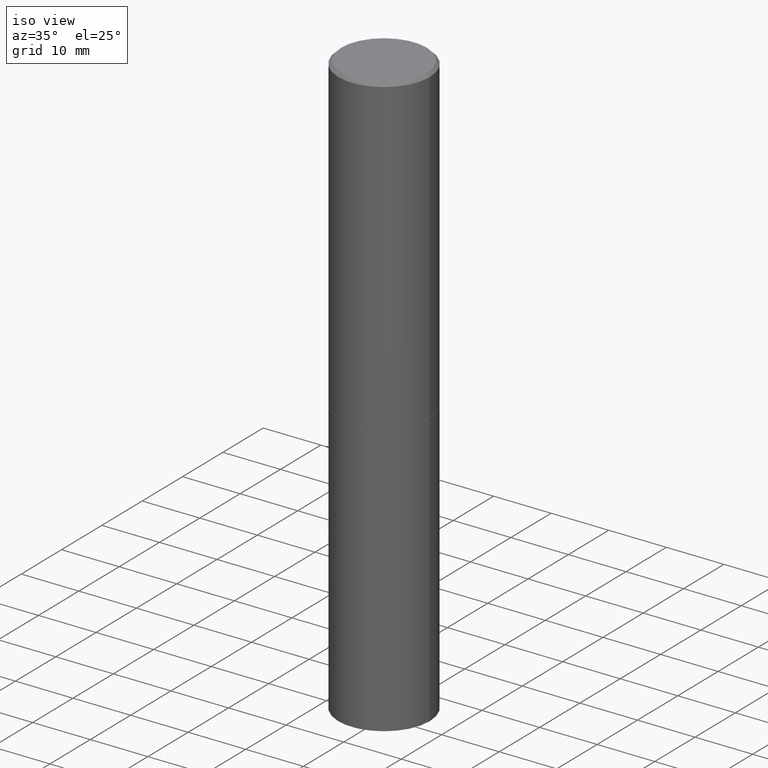
[diagram: clean part render]
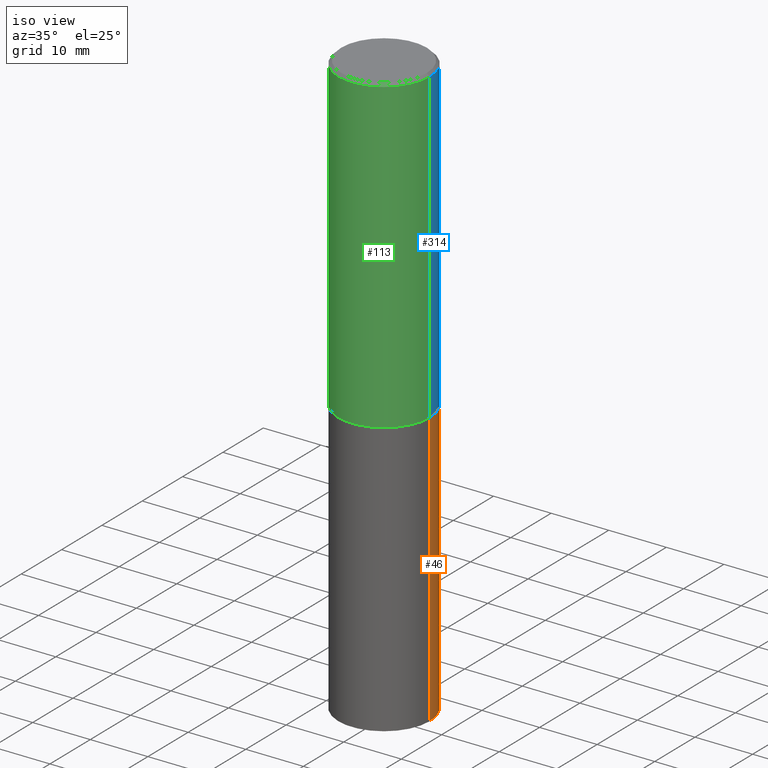
[diagram: same view with three faces highlighted in distinct colors, each labeled with its STEP entity id]
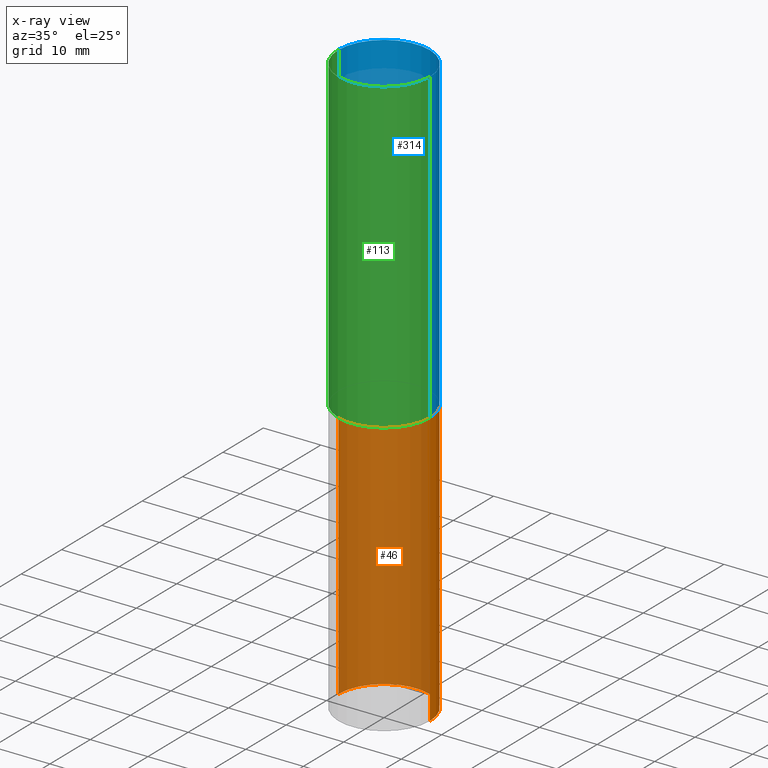
[diagram: x-ray of the same camera — body ghosted, the three highlighted faces saturated]
A machine part, iso view with three faces highlighted in distinct colors.
The next image is the same camera in x-ray (body ghosted, the three faces saturated) — at least one of them is partly hidden behind the body in this view.
Their STEP definitions:

[orange] entity #46 — the highlighted cylindrical surface (partial cylindrical patch) has radius 7.9375 mm, axis along (-0, 0, 1).
#16 = DIRECTION ( 'NONE',  ( -2.445468806185136877E-29, 3.491481338843145188E-15, 1.000000000000000000 ) ) ;
#29 = VERTEX_POINT ( 'NONE', #106 ) ;
#32 = DIRECTION ( 'NONE',  ( -2.445468806185136597E-29, 3.491481338843145583E-15, 1.000000000000000000 ) ) ;
#36 = ORIENTED_EDGE ( 'NONE', *, *, #109, .T. ) ;
#45 = CARTESIAN_POINT ( 'NONE',  ( 0.000000000000000000, 0.000000000000000000, 0.000000000000000000 ) ) ;
#46 = ADVANCED_FACE ( 'NONE', ( #328 ), #130, .T. ) ;
#60 = ORIENTED_EDGE ( 'NONE', *, *, #61, .T. ) ;
#61 = EDGE_CURVE ( 'NONE', #29, #227, #129, .T. ) ;
#67 = VERTEX_POINT ( 'NONE', #238 ) ;
#72 = CARTESIAN_POINT ( 'NONE',  ( 0.3125000000000000000, -2.182175836776958347E-15, 1.523805242436230075E-29 ) ) ;
#87 = DIRECTION ( 'NONE',  ( 1.000000000000000000, -6.982962677686265133E-15, 0.000000000000000000 ) ) ;
#106 = CARTESIAN_POINT ( 'NONE',  ( 0.3125000000000000000, -1.614810119214954068E-14, -4.000000000000000000 ) ) ;
#109 = EDGE_CURVE ( 'NONE', #227, #67, #282, .T. ) ;
#117 = VERTEX_POINT ( 'NONE', #272 ) ;
#126 = EDGE_CURVE ( 'NONE', #29, #117, #241, .T. ) ;
#129 = CIRCLE ( 'NONE', #343, 0.3125000000000000000 ) ;
#130 = CYLINDRICAL_SURFACE ( 'NONE', #134, 0.3125000000000000000 ) ;
#134 = AXIS2_PLACEMENT_3D ( 'NONE', #45, #304, #333 ) ;
#137 = DIRECTION ( 'NONE',  ( 1.000000000000000000, -6.982962677686269077E-15, 0.000000000000000000 ) ) ;
#163 = VECTOR ( 'NONE', #16, 39.37007874015748143 ) ;
#188 = CARTESIAN_POINT ( 'NONE',  ( 5.196621213143414147E-29, -7.419397845041682046E-15, -2.124999999999999556 ) ) ;
#191 = DIRECTION ( 'NONE',  ( -2.445468806185136597E-29, 3.491481338843145583E-15, 1.000000000000000000 ) ) ;
#192 = EDGE_CURVE ( 'NONE', #117, #67, #339, .T. ) ;
#201 = AXIS2_PLACEMENT_3D ( 'NONE', #188, #32, #87 ) ;
#217 = CARTESIAN_POINT ( 'NONE',  ( -0.3125000000000000000, 2.220446049250313081E-15, -1.537167215704658232E-29 ) ) ;
#227 = VERTEX_POINT ( 'NONE', #297 ) ;
#238 = CARTESIAN_POINT ( 'NONE',  ( -0.3125000000000000000, -8.472215550956819896E-15, -2.124999999999999556 ) ) ;
#241 = LINE ( 'NONE', #72, #163 ) ;
#244 = EDGE_LOOP ( 'NONE', ( #60, #36, #365, #353 ) ) ;
#246 = DIRECTION ( 'NONE',  ( -2.445468806185136877E-29, 3.491481338843145188E-15, 1.000000000000000000 ) ) ;
#272 = CARTESIAN_POINT ( 'NONE',  ( 0.3125000000000000000, -9.601573681818640393E-15, -2.124999999999999556 ) ) ;
#282 = LINE ( 'NONE', #217, #308 ) ;
#297 = CARTESIAN_POINT ( 'NONE',  ( -0.3125000000000000000, -8.472215550956819896E-15, -4.000000000000000000 ) ) ;
#304 = DIRECTION ( 'NONE',  ( -2.445468806185136597E-29, 3.491481338843145583E-15, 1.000000000000000000 ) ) ;
#308 = VECTOR ( 'NONE', #246, 39.37007874015748143 ) ;
#328 = FACE_OUTER_BOUND ( 'NONE', #244, .T. ) ;
#333 = DIRECTION ( 'NONE',  ( 1.000000000000000000, -6.982962677686266711E-15, 4.876176775795936353E-29 ) ) ;
#339 = CIRCLE ( 'NONE', #201, 0.3125000000000000000 ) ;
#343 = AXIS2_PLACEMENT_3D ( 'NONE', #356, #191, #137 ) ;
#353 = ORIENTED_EDGE ( 'NONE', *, *, #126, .F. ) ;
#356 = CARTESIAN_POINT ( 'NONE',  ( 9.781875224740546387E-29, -1.396592535537258233E-14, -4.000000000000000000 ) ) ;
#365 = ORIENTED_EDGE ( 'NONE', *, *, #192, .F. ) ;

[blue] entity #314 — the highlighted cylindrical surface (partial cylindrical patch) has radius 7.9375 mm, axis along (-0, 0, 1).
#7 = CIRCLE ( 'NONE', #119, 0.3124999999999998335 ) ;
#14 = DIRECTION ( 'NONE',  ( -2.445468806185136877E-29, 3.491481338843145188E-15, 1.000000000000000000 ) ) ;
#20 = ORIENTED_EDGE ( 'NONE', *, *, #127, .T. ) ;
#23 = VECTOR ( 'NONE', #14, 39.37007874015748143 ) ;
#57 = AXIS2_PLACEMENT_3D ( 'NONE', #94, #65, #214 ) ;
#59 = CARTESIAN_POINT ( 'NONE',  ( -0.3124999999999998890, 2.220446049250312292E-15, -1.537167215704657391E-29 ) ) ;
#65 = DIRECTION ( 'NONE',  ( -2.445468806185136597E-29, 3.491481338843145583E-15, 1.000000000000000000 ) ) ;
#90 = LINE ( 'NONE', #273, #23 ) ;
#94 = CARTESIAN_POINT ( 'NONE',  ( 5.194175744337229665E-29, -7.415906363702840616E-15, -2.123999999999999666 ) ) ;
#105 = DIRECTION ( 'NONE',  ( -2.445468806185136597E-29, 3.491481338843145583E-15, 1.000000000000000000 ) ) ;
#119 = AXIS2_PLACEMENT_3D ( 'NONE', #271, #190, #133 ) ;
#127 = EDGE_CURVE ( 'NONE', #146, #200, #211, .T. ) ;
#133 = DIRECTION ( 'NONE',  ( 1.000000000000000000, -6.982962677686265133E-15, 0.000000000000000000 ) ) ;
#146 = VERTEX_POINT ( 'NONE', #335 ) ;
#168 = CARTESIAN_POINT ( 'NONE',  ( 0.3125000000000000000, -9.598082200479797386E-15, -2.123999999999999666 ) ) ;
#169 = EDGE_CURVE ( 'NONE', #312, #171, #90, .T. ) ;
#171 = VERTEX_POINT ( 'NONE', #180 ) ;
#180 = CARTESIAN_POINT ( 'NONE',  ( 0.3124999999999998335, -2.213735251080465334E-15, -0.02000000000000007674 ) ) ;
#190 = DIRECTION ( 'NONE',  ( -2.445468806185136597E-29, 3.491481338843145583E-15, 1.000000000000000000 ) ) ;
#196 = ORIENTED_EDGE ( 'NONE', *, *, #270, .F. ) ;
#198 = EDGE_LOOP ( 'NONE', ( #224, #20, #196, #223 ) ) ;
#200 = VERTEX_POINT ( 'NONE', #239 ) ;
#205 = EDGE_CURVE ( 'NONE', #312, #146, #324, .T. ) ;
#211 = LINE ( 'NONE', #59, #316 ) ;
#214 = DIRECTION ( 'NONE',  ( 1.000000000000000000, -6.982962677686265133E-15, 0.000000000000000000 ) ) ;
#222 = DIRECTION ( 'NONE',  ( 1.000000000000000000, -6.982962677686266711E-15, 4.876176775795935232E-29 ) ) ;
#223 = ORIENTED_EDGE ( 'NONE', *, *, #169, .F. ) ;
#224 = ORIENTED_EDGE ( 'NONE', *, *, #205, .T. ) ;
#237 = AXIS2_PLACEMENT_3D ( 'NONE', #310, #105, #222 ) ;
#239 = CARTESIAN_POINT ( 'NONE',  ( -0.3124999999999998335, 2.112346210000093866E-15, -0.02000000000000007674 ) ) ;
#270 = EDGE_CURVE ( 'NONE', #171, #200, #7, .T. ) ;
#271 = CARTESIAN_POINT ( 'NONE',  ( 4.890937612370292426E-31, -6.982962677686317493E-17, -0.02000000000000007674 ) ) ;
#273 = CARTESIAN_POINT ( 'NONE',  ( 0.3124999999999998890, -2.182175836776957558E-15, 1.523805242436229235E-29 ) ) ;
#310 = CARTESIAN_POINT ( 'NONE',  ( 0.000000000000000000, 0.000000000000000000, 0.000000000000000000 ) ) ;
#312 = VERTEX_POINT ( 'NONE', #168 ) ;
#314 = ADVANCED_FACE ( 'NONE', ( #355 ), #357, .T. ) ;
#316 = VECTOR ( 'NONE', #340, 39.37007874015748143 ) ;
#324 = CIRCLE ( 'NONE', #57, 0.3125000000000000000 ) ;
#335 = CARTESIAN_POINT ( 'NONE',  ( -0.3125000000000000000, -1.522421945989535918E-15, -2.123999999999999666 ) ) ;
#340 = DIRECTION ( 'NONE',  ( -2.445468806185136877E-29, 3.491481338843145188E-15, 1.000000000000000000 ) ) ;
#355 = FACE_OUTER_BOUND ( 'NONE', #198, .T. ) ;
#357 = CYLINDRICAL_SURFACE ( 'NONE', #237, 0.3124999999999998890 ) ;

[green] entity #113 — the highlighted cylindrical surface (partial cylindrical patch) has radius 7.9375 mm, axis along (-0, 0, 1).
#12 = DIRECTION ( 'NONE',  ( 1.000000000000000000, -6.982962677686265133E-15, 0.000000000000000000 ) ) ;
#14 = DIRECTION ( 'NONE',  ( -2.445468806185136877E-29, 3.491481338843145188E-15, 1.000000000000000000 ) ) ;
#19 = DIRECTION ( 'NONE',  ( 1.000000000000000000, -6.982962677686265133E-15, 0.000000000000000000 ) ) ;
#23 = VECTOR ( 'NONE', #14, 39.37007874015748143 ) ;
#41 = DIRECTION ( 'NONE',  ( 1.000000000000000000, -6.982962677686266711E-15, 4.876176775795935232E-29 ) ) ;
#59 = CARTESIAN_POINT ( 'NONE',  ( -0.3124999999999998890, 2.220446049250312292E-15, -1.537167215704657391E-29 ) ) ;
#74 = DIRECTION ( 'NONE',  ( -2.445468806185136597E-29, 3.491481338843145583E-15, 1.000000000000000000 ) ) ;
#75 = FACE_OUTER_BOUND ( 'NONE', #298, .T. ) ;
#78 = ORIENTED_EDGE ( 'NONE', *, *, #182, .F. ) ;
#79 = CYLINDRICAL_SURFACE ( 'NONE', #152, 0.3124999999999998890 ) ;
#90 = LINE ( 'NONE', #273, #23 ) ;
#97 = EDGE_CURVE ( 'NONE', #146, #312, #144, .T. ) ;
#113 = ADVANCED_FACE ( 'NONE', ( #75 ), #79, .T. ) ;
#120 = ORIENTED_EDGE ( 'NONE', *, *, #97, .T. ) ;
#127 = EDGE_CURVE ( 'NONE', #146, #200, #211, .T. ) ;
#144 = CIRCLE ( 'NONE', #159, 0.3125000000000000000 ) ;
#146 = VERTEX_POINT ( 'NONE', #335 ) ;
#152 = AXIS2_PLACEMENT_3D ( 'NONE', #194, #170, #41 ) ;
#159 = AXIS2_PLACEMENT_3D ( 'NONE', #165, #74, #19 ) ;
#165 = CARTESIAN_POINT ( 'NONE',  ( 5.194175744337229665E-29, -7.415906363702840616E-15, -2.123999999999999666 ) ) ;
#168 = CARTESIAN_POINT ( 'NONE',  ( 0.3125000000000000000, -9.598082200479797386E-15, -2.123999999999999666 ) ) ;
#169 = EDGE_CURVE ( 'NONE', #312, #171, #90, .T. ) ;
#170 = DIRECTION ( 'NONE',  ( -2.445468806185136597E-29, 3.491481338843145583E-15, 1.000000000000000000 ) ) ;
#171 = VERTEX_POINT ( 'NONE', #180 ) ;
#173 = AXIS2_PLACEMENT_3D ( 'NONE', #363, #186, #12 ) ;
#180 = CARTESIAN_POINT ( 'NONE',  ( 0.3124999999999998335, -2.213735251080465334E-15, -0.02000000000000007674 ) ) ;
#182 = EDGE_CURVE ( 'NONE', #200, #171, #352, .T. ) ;
#186 = DIRECTION ( 'NONE',  ( -2.445468806185136597E-29, 3.491481338843145583E-15, 1.000000000000000000 ) ) ;
#194 = CARTESIAN_POINT ( 'NONE',  ( 0.000000000000000000, 0.000000000000000000, 0.000000000000000000 ) ) ;
#200 = VERTEX_POINT ( 'NONE', #239 ) ;
#211 = LINE ( 'NONE', #59, #316 ) ;
#225 = ORIENTED_EDGE ( 'NONE', *, *, #127, .F. ) ;
#239 = CARTESIAN_POINT ( 'NONE',  ( -0.3124999999999998335, 2.112346210000093866E-15, -0.02000000000000007674 ) ) ;
#273 = CARTESIAN_POINT ( 'NONE',  ( 0.3124999999999998890, -2.182175836776957558E-15, 1.523805242436229235E-29 ) ) ;
#298 = EDGE_LOOP ( 'NONE', ( #225, #120, #334, #78 ) ) ;
#312 = VERTEX_POINT ( 'NONE', #168 ) ;
#316 = VECTOR ( 'NONE', #340, 39.37007874015748143 ) ;
#334 = ORIENTED_EDGE ( 'NONE', *, *, #169, .T. ) ;
#335 = CARTESIAN_POINT ( 'NONE',  ( -0.3125000000000000000, -1.522421945989535918E-15, -2.123999999999999666 ) ) ;
#340 = DIRECTION ( 'NONE',  ( -2.445468806185136877E-29, 3.491481338843145188E-15, 1.000000000000000000 ) ) ;
#352 = CIRCLE ( 'NONE', #173, 0.3124999999999998335 ) ;
#363 = CARTESIAN_POINT ( 'NONE',  ( 4.890937612370292426E-31, -6.982962677686317493E-17, -0.02000000000000007674 ) ) ;